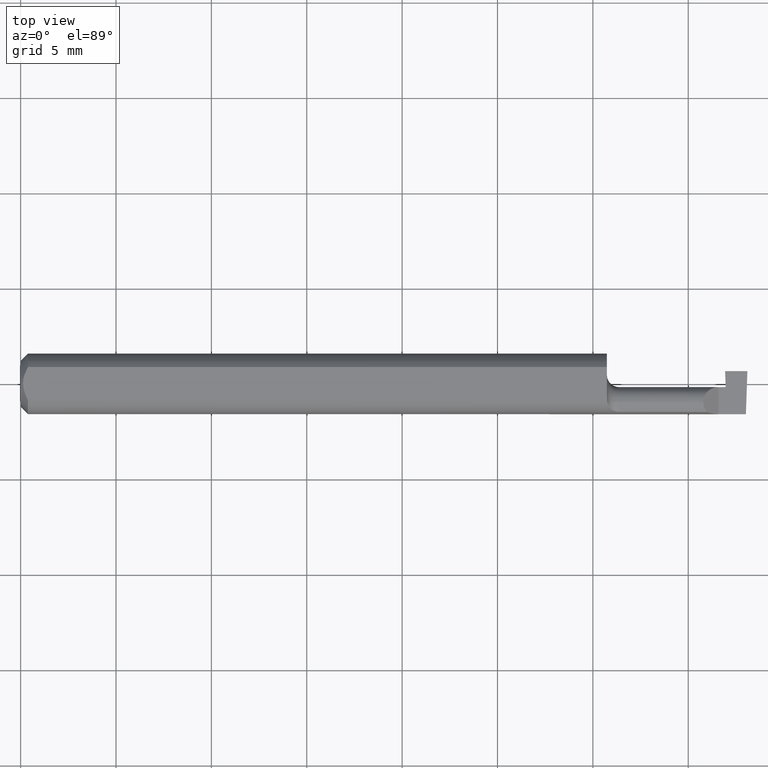
[diagram: clean part render]
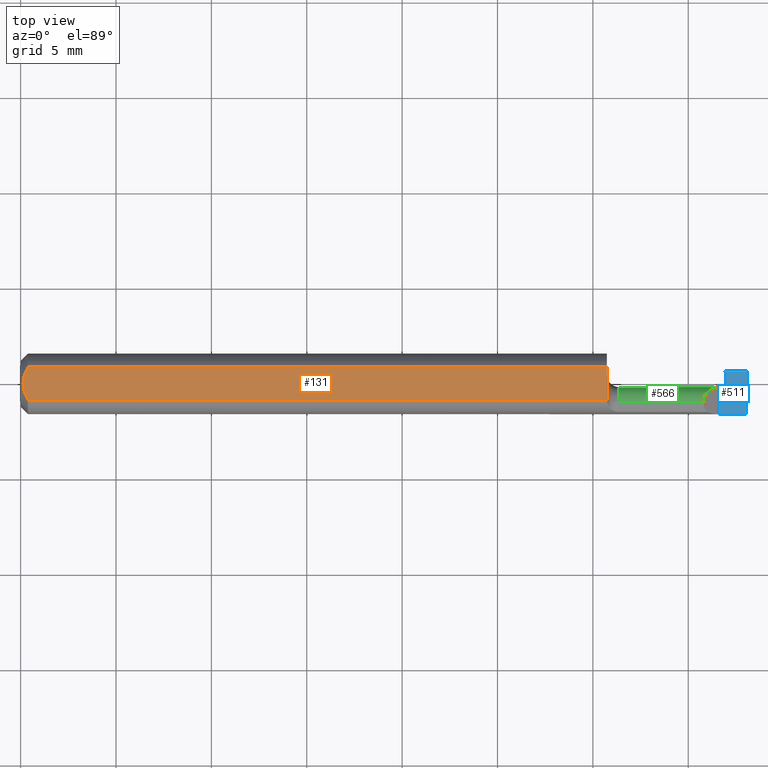
[diagram: same view with three faces highlighted in distinct colors, each labeled with its STEP entity id]
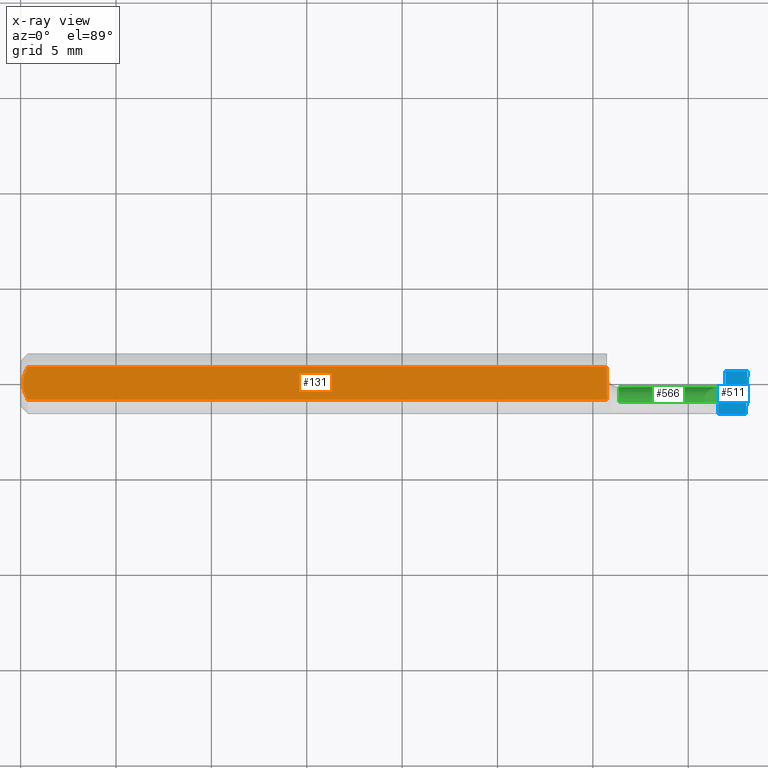
[diagram: x-ray of the same camera — body ghosted, the three highlighted faces saturated]
A machine part, top view with three faces highlighted in distinct colors.
The next image is the same camera in x-ray (body ghosted, the three faces saturated) — at least one of them is partly hidden behind the body in this view.
Their STEP definitions:

[orange] entity #131 — the highlighted planar face has unit normal (0, -0, 1).
#8 = CARTESIAN_POINT ( 'NONE',  ( 0.004999999999998634009, -0.005964525438754507587, 0.05250000000000000500 ) ) ;
#14 = EDGE_LOOP ( 'NONE', ( #438, #233, #417, #288, #121, #435 ) ) ;
#20 = CARTESIAN_POINT ( 'NONE',  ( 0.004999999999989314207, 8.235553591830799656E-16, 0.05250000000000000500 ) ) ;
#23 = CARTESIAN_POINT ( 'NONE',  ( 0.004999999999999040802, 0.005952453510029875015, 0.05249999999999999806 ) ) ;
#36 = EDGE_CURVE ( 'NONE', #390, #470, #84, .T. ) ;
#39 = CARTESIAN_POINT ( 'NONE',  ( 1.500000000000000222, -0.06250000000000001388, 0.05250000000000000500 ) ) ;
#50 = FACE_OUTER_BOUND ( 'NONE', #14, .T. ) ;
#62 = VERTEX_POINT ( 'NONE', #531 ) ;
#63 = CARTESIAN_POINT ( 'NONE',  ( 1.210204566557054884, -0.03126200802673112511, 0.05250000000000000500 ) ) ;
#84 = LINE ( 'NONE', #292, #485 ) ;
#89 = DIRECTION ( 'NONE',  ( -0.000000000000000000, 1.000000000000000000, 0.000000000000000000 ) ) ;
#90 = B_SPLINE_CURVE_WITH_KNOTS ( 'NONE', 3,
 ( #625, #8, #572, #564, #337, #468 ),
 .UNSPECIFIED., .F., .F.,
 ( 4, 2, 4 ),
 ( 0.001877944590463637717, 0.002327931134338583757, 0.002777917678213529581 ),
 .UNSPECIFIED. ) ;
#96 = LINE ( 'NONE', #645, #600 ) ;
#104 = EDGE_CURVE ( 'NONE', #62, #462, #96, .T. ) ;
#121 = ORIENTED_EDGE ( 'NONE', *, *, #407, .T. ) ;
#131 = ADVANCED_FACE ( 'NONE', ( #50 ), #261, .T. ) ;
#139 = CARTESIAN_POINT ( 'NONE',  ( 1.210000000000000187, -0.06250000000000001388, 0.05250000000000000500 ) ) ;
#172 = CARTESIAN_POINT ( 'NONE',  ( 1.209999999999999964, -0.02066217183507433608, 0.05250000000000000500 ) ) ;
#184 = CARTESIAN_POINT ( 'NONE',  ( 1.209999999999999964, -0.01801282473009493609, 0.05250000000000000500 ) ) ;
#222 = VECTOR ( 'NONE', #89, 39.37007874015748143 ) ;
#233 = ORIENTED_EDGE ( 'NONE', *, *, #658, .T. ) ;
#251 = DIRECTION ( 'NONE',  ( 0.000000000000000000, -0.000000000000000000, 1.000000000000000000 ) ) ;
#261 = PLANE ( 'NONE',  #697 ) ;
#283 = CARTESIAN_POINT ( 'NONE',  ( 1.210229202404335291, -0.03391164991562639619, 0.05250000000000000500 ) ) ;
#288 = ORIENTED_EDGE ( 'NONE', *, *, #36, .T. ) ;
#290 = CARTESIAN_POINT ( 'NONE',  ( 0.009668628632509970039, 0.02325858892916567860, 0.05250000000000001193 ) ) ;
#292 = CARTESIAN_POINT ( 'NONE',  ( 0.000000000000000000, 0.03391164991562636150, 0.05249999999999998418 ) ) ;
#301 = CARTESIAN_POINT ( 'NONE',  ( 0.01499999999999999771, 0.03391164991562633374, 0.05250000000000000500 ) ) ;
#316 = CARTESIAN_POINT ( 'NONE',  ( 1.209999999999999964, -0.01801282473009493609, 0.05250000000000000500 ) ) ;
#329 = VERTEX_POINT ( 'NONE', #398 ) ;
#331 = B_SPLINE_CURVE_WITH_KNOTS ( 'NONE', 3,
 ( #283, #63, #559, #348, #172, #184 ),
 .UNSPECIFIED., .F., .F.,
 ( 4, 2, 4 ),
 ( 0.006720649285649993657, 0.006920528095085039244, 0.007120406904520083964 ),
 .UNSPECIFIED. ) ;
#337 = CARTESIAN_POINT ( 'NONE',  ( 0.01216049014016022493, -0.02867836381244416935, 0.05250000000000000500 ) ) ;
#348 = CARTESIAN_POINT ( 'NONE',  ( 1.210049859856603183, -0.02331211554562635097, 0.05250000000000001193 ) ) ;
#349 = CARTESIAN_POINT ( 'NONE',  ( 1.210000000000000187, 0.03391164991562634068, 0.05250000000000000500 ) ) ;
#373 = B_SPLINE_CURVE_WITH_KNOTS ( 'NONE', 3,
 ( #691, #472, #290, #681, #23, #20 ),
 .UNSPECIFIED., .F., .F.,
 ( 4, 2, 4 ),
 ( 0.0009797930073890425730, 0.001428868798926340253, 0.001877944590463637717 ),
 .UNSPECIFIED. ) ;
#374 = DIRECTION ( 'NONE',  ( 1.000000000000000000, 0.000000000000000000, -0.000000000000000000 ) ) ;
#390 = VERTEX_POINT ( 'NONE', #349 ) ;
#398 = CARTESIAN_POINT ( 'NONE',  ( 0.004999999999989314207, 8.235553591830799656E-16, 0.05250000000000000500 ) ) ;
#407 = EDGE_CURVE ( 'NONE', #470, #329, #373, .T. ) ;
#414 = LINE ( 'NONE', #139, #222 ) ;
#417 = ORIENTED_EDGE ( 'NONE', *, *, #464, .T. ) ;
#432 = DIRECTION ( 'NONE',  ( 1.000000000000000000, 0.000000000000000000, 0.000000000000000000 ) ) ;
#435 = ORIENTED_EDGE ( 'NONE', *, *, #648, .T. ) ;
#438 = ORIENTED_EDGE ( 'NONE', *, *, #104, .T. ) ;
#462 = VERTEX_POINT ( 'NONE', #521 ) ;
#464 = EDGE_CURVE ( 'NONE', #543, #390, #414, .T. ) ;
#468 = CARTESIAN_POINT ( 'NONE',  ( 0.01499999999999999944, -0.03391164991562636150, 0.05249999999999998418 ) ) ;
#470 = VERTEX_POINT ( 'NONE', #301 ) ;
#472 = CARTESIAN_POINT ( 'NONE',  ( 0.01218419045468773464, 0.02872204407162096823, 0.05250000000000001193 ) ) ;
#485 = VECTOR ( 'NONE', #641, 39.37007874015748143 ) ;
#521 = CARTESIAN_POINT ( 'NONE',  ( 1.210229202404335291, -0.03391164991562639619, 0.05250000000000000500 ) ) ;
#531 = CARTESIAN_POINT ( 'NONE',  ( 0.01499999999999999944, -0.03391164991562636150, 0.05249999999999998418 ) ) ;
#543 = VERTEX_POINT ( 'NONE', #316 ) ;
#559 = CARTESIAN_POINT ( 'NONE',  ( 1.210152529077525907, -0.02861203825950621102, 0.05250000000000001193 ) ) ;
#564 = CARTESIAN_POINT ( 'NONE',  ( 0.009676924495017957123, -0.02328413057436891712, 0.05250000000000001193 ) ) ;
#572 = CARTESIAN_POINT ( 'NONE',  ( 0.006056885874551373727, -0.01188654981375985957, 0.05250000000000001193 ) ) ;
#600 = VECTOR ( 'NONE', #432, 39.37007874015748143 ) ;
#625 = CARTESIAN_POINT ( 'NONE',  ( 0.004999999999989314207, 8.235553591830799656E-16, 0.05250000000000000500 ) ) ;
#641 = DIRECTION ( 'NONE',  ( -1.000000000000000000, -0.000000000000000000, -0.000000000000000000 ) ) ;
#645 = CARTESIAN_POINT ( 'NONE',  ( 0.000000000000000000, -0.03391164991562636150, 0.05249999999999998418 ) ) ;
#648 = EDGE_CURVE ( 'NONE', #329, #62, #90, .T. ) ;
#658 = EDGE_CURVE ( 'NONE', #462, #543, #331, .T. ) ;
#681 = CARTESIAN_POINT ( 'NONE',  ( 0.006063917085846147297, 0.01190810954070469288, 0.05250000000000001887 ) ) ;
#691 = CARTESIAN_POINT ( 'NONE',  ( 0.01499999999999999771, 0.03391164991562633374, 0.05250000000000000500 ) ) ;
#697 = AXIS2_PLACEMENT_3D ( 'NONE', #39, #251, #374 ) ;

[blue] entity #511 — the highlighted planar face has unit normal (-0, 0, -1).
#3 = VERTEX_POINT ( 'NONE', #244 ) ;
#11 = CARTESIAN_POINT ( 'NONE',  ( 1.454000000000000181, 0.02649999999999999231, -4.390358774943263236E-18 ) ) ;
#19 = VECTOR ( 'NONE', #295, 39.37007874015748143 ) ;
#69 = CARTESIAN_POINT ( 'NONE',  ( 1.440000000000000169, -0.06250000000000000000, 7.469896857675718968E-18 ) ) ;
#87 = VERTEX_POINT ( 'NONE', #484 ) ;
#116 = DIRECTION ( 'NONE',  ( -1.000000000000000000, -0.000000000000000000, -0.000000000000000000 ) ) ;
#118 = CARTESIAN_POINT ( 'NONE',  ( 1.440000000000000169, -0.1000000000000000056, 7.469896857675718968E-18 ) ) ;
#127 = DIRECTION ( 'NONE',  ( -0.000000000000000000, 1.000000000000000000, -0.000000000000000000 ) ) ;
#145 = DIRECTION ( 'NONE',  ( 0.03487823687994284771, -0.9993915692020551855, -4.336991745945064567E-18 ) ) ;
#157 = VECTOR ( 'NONE', #116, 39.37007874015748143 ) ;
#167 = ORIENTED_EDGE ( 'NONE', *, *, #372, .T. ) ;
#169 = LINE ( 'NONE', #655, #391 ) ;
#171 = EDGE_LOOP ( 'NONE', ( #507, #276, #634, #167, #340, #624 ) ) ;
#192 = LINE ( 'NONE', #586, #19 ) ;
#198 = FACE_OUTER_BOUND ( 'NONE', #171, .T. ) ;
#207 = EDGE_CURVE ( 'NONE', #87, #3, #169, .T. ) ;
#224 = DIRECTION ( 'NONE',  ( 1.000000000000000000, -0.000000000000000000, -0.000000000000000000 ) ) ;
#227 = EDGE_CURVE ( 'NONE', #540, #657, #503, .T. ) ;
#244 = CARTESIAN_POINT ( 'NONE',  ( 1.455151682536162783, -0.006500000000000021386, 1.132879419432717802E-17 ) ) ;
#276 = ORIENTED_EDGE ( 'NONE', *, *, #439, .T. ) ;
#295 = DIRECTION ( 'NONE',  ( 0.03489949670249706953, 0.9993908270190959842, -4.341950059913416674E-18 ) ) ;
#311 = DIRECTION ( 'NONE',  ( -1.000000000000000000, 0.000000000000000000, 1.244982809612622067E-16 ) ) ;
#315 = AXIS2_PLACEMENT_3D ( 'NONE', #320, #698, #311 ) ;
#320 = CARTESIAN_POINT ( 'NONE',  ( 1.500000000000000222, -0.1000000000000000056, 0.000000000000000000 ) ) ;
#340 = ORIENTED_EDGE ( 'NONE', *, *, #207, .F. ) ;
#367 = VECTOR ( 'NONE', #224, 39.37007874015748143 ) ;
#372 = EDGE_CURVE ( 'NONE', #668, #3, #626, .T. ) ;
#376 = PLANE ( 'NONE',  #315 ) ;
#380 = VECTOR ( 'NONE', #145, 39.37007874015749564 ) ;
#391 = VECTOR ( 'NONE', #618, 39.37007874015748143 ) ;
#393 = CARTESIAN_POINT ( 'NONE',  ( 2.324973294346407873E-32, -0.06250000000000000000, 1.867474214418933224E-16 ) ) ;
#397 = CARTESIAN_POINT ( 'NONE',  ( 1.400000000000000133, 0.02649999999999999231, -4.390358774943263236E-18 ) ) ;
#439 = EDGE_CURVE ( 'NONE', #540, #652, #192, .T. ) ;
#484 = CARTESIAN_POINT ( 'NONE',  ( 1.440000000000000169, -0.006500000000000019651, 7.469896857675718968E-18 ) ) ;
#503 = LINE ( 'NONE', #393, #157 ) ;
#507 = ORIENTED_EDGE ( 'NONE', *, *, #227, .F. ) ;
#511 = ADVANCED_FACE ( 'NONE', ( #198 ), #376, .F. ) ;
#528 = CARTESIAN_POINT ( 'NONE',  ( 1.458465371114397113, -0.1014495365676831157, 5.170989896621579439E-18 ) ) ;
#540 = VERTEX_POINT ( 'NONE', #553 ) ;
#553 = CARTESIAN_POINT ( 'NONE',  ( 1.496892051515234412, -0.06249999999999996531, -4.074989739627355278E-18 ) ) ;
#586 = CARTESIAN_POINT ( 'NONE',  ( 1.495587903035684230, -0.09984592617893391087, 5.492984874917308691E-19 ) ) ;
#617 = LINE ( 'NONE', #397, #367 ) ;
#618 = DIRECTION ( 'NONE',  ( 1.000000000000000000, 0.000000000000000000, 0.000000000000000000 ) ) ;
#620 = EDGE_CURVE ( 'NONE', #657, #87, #622, .T. ) ;
#622 = LINE ( 'NONE', #118, #711 ) ;
#624 = ORIENTED_EDGE ( 'NONE', *, *, #620, .F. ) ;
#626 = LINE ( 'NONE', #528, #380 ) ;
#634 = ORIENTED_EDGE ( 'NONE', *, *, #640, .F. ) ;
#640 = EDGE_CURVE ( 'NONE', #668, #652, #617, .T. ) ;
#652 = VERTEX_POINT ( 'NONE', #680 ) ;
#655 = CARTESIAN_POINT ( 'NONE',  ( 1.210000000000000187, -0.006499999999999993630, 3.610450147876602688E-17 ) ) ;
#657 = VERTEX_POINT ( 'NONE', #69 ) ;
#668 = VERTEX_POINT ( 'NONE', #11 ) ;
#680 = CARTESIAN_POINT ( 'NONE',  ( 1.499999999999999556, 0.02649999999999997843, -1.043117739768287950E-16 ) ) ;
#698 = DIRECTION ( 'NONE',  ( -1.244982809612622067E-16, 0.000000000000000000, -1.000000000000000000 ) ) ;
#711 = VECTOR ( 'NONE', #127, 39.37007874015748143 ) ;

[green] entity #566 — the highlighted cylindrical surface (edge-blend (fillet) strip) has radius 0.7874 mm, axis along (-1, -0, -0).
#3 = VERTEX_POINT ( 'NONE', #244 ) ;
#5 = LINE ( 'NONE', #165, #80 ) ;
#44 = ORIENTED_EDGE ( 'NONE', *, *, #419, .F. ) ;
#46 = CARTESIAN_POINT ( 'NONE',  ( 1.210000000000000187, -0.03749999999999999167, 0.000000000000000000 ) ) ;
#47 = CARTESIAN_POINT ( 'NONE',  ( 1.455785434802166822, -0.006499999999999978885, -0.01815937956643404530 ) ) ;
#49 = FACE_OUTER_BOUND ( 'NONE', #56, .T. ) ;
#56 = EDGE_LOOP ( 'NONE', ( #501, #536, #44, #619, #273, #113 ) ) ;
#74 = VERTEX_POINT ( 'NONE', #249 ) ;
#80 = VECTOR ( 'NONE', #612, 39.37007874015748143 ) ;
#87 = VERTEX_POINT ( 'NONE', #484 ) ;
#94 = EDGE_CURVE ( 'NONE', #702, #3, #370, .T. ) ;
#101 = CARTESIAN_POINT ( 'NONE',  ( 1.409000000000000252, -0.03749999999999999167, 0.03099999999999999978 ) ) ;
#102 = VERTEX_POINT ( 'NONE', #599 ) ;
#103 = CARTESIAN_POINT ( 'NONE',  ( 1.455151682536162783, -0.006500000000000021386, 1.132879419432717802E-17 ) ) ;
#113 = ORIENTED_EDGE ( 'NONE', *, *, #207, .T. ) ;
#114 = EDGE_CURVE ( 'NONE', #173, #87, #449, .T. ) ;
#165 = CARTESIAN_POINT ( 'NONE',  ( 1.210000000000000187, -0.03749999999999999167, 0.03099999999999999978 ) ) ;
#169 = LINE ( 'NONE', #655, #391 ) ;
#173 = VERTEX_POINT ( 'NONE', #101 ) ;
#207 = EDGE_CURVE ( 'NONE', #87, #3, #169, .T. ) ;
#239 = EDGE_CURVE ( 'NONE', #173, #102, #5, .T. ) ;
#244 = CARTESIAN_POINT ( 'NONE',  ( 1.455151682536162783, -0.006500000000000021386, 1.132879419432717802E-17 ) ) ;
#249 = CARTESIAN_POINT ( 'NONE',  ( 1.235000000000000098, -0.03749999999999998473, -0.03099999999999999978 ) ) ;
#262 = DIRECTION ( 'NONE',  ( 0.000000000000000000, 0.000000000000000000, 1.000000000000000000 ) ) ;
#273 = ORIENTED_EDGE ( 'NONE', *, *, #114, .T. ) ;
#282 = EDGE_CURVE ( 'NONE', #702, #74, #560, .T. ) ;
#309 = CARTESIAN_POINT ( 'NONE',  ( 1.421840620433566293, -0.006499999999999986691, 0.01815937956643405224 ) ) ;
#365 = DIRECTION ( 'NONE',  ( -1.000000000000000000, -0.000000000000000000, -0.000000000000000000 ) ) ;
#370 =( BOUNDED_CURVE ( )  B_SPLINE_CURVE ( 3, ( #491, #549, #47, #103 ),
 .UNSPECIFIED., .F., .T. ) 
 B_SPLINE_CURVE_WITH_KNOTS ( ( 4, 4 ),
 ( 3.140373936913447572, 4.711170263708345018 ),
 .UNSPECIFIED. ) 
 CURVE ( )  GEOMETRIC_REPRESENTATION_ITEM ( )  RATIONAL_B_SPLINE_CURVE ( ( 1.000000000000000000, 0.8047378541243648264, 0.8047378541243648264, 1.000000000000000000 ) ) 
 REPRESENTATION_ITEM ( '' )  );
#381 = DIRECTION ( 'NONE',  ( -1.000000000000000000, -0.000000000000000000, -0.000000000000000000 ) ) ;
#391 = VECTOR ( 'NONE', #618, 39.37007874015748143 ) ;
#411 = DIRECTION ( 'NONE',  ( 0.000000000000000000, 0.000000000000000000, 1.000000000000000000 ) ) ;
#419 = EDGE_CURVE ( 'NONE', #102, #74, #539, .T. ) ;
#428 = CARTESIAN_POINT ( 'NONE',  ( 1.440000000000000169, -0.006500000000000019651, 7.469896857675718968E-18 ) ) ;
#449 =( BOUNDED_CURVE ( )  B_SPLINE_CURVE ( 3, ( #709, #602, #309, #428 ),
 .UNSPECIFIED., .F., .F. ) 
 B_SPLINE_CURVE_WITH_KNOTS ( ( 4, 4 ),
 ( 0.000000000000000000, 1.570796326794896558 ),
 .UNSPECIFIED. ) 
 CURVE ( )  GEOMETRIC_REPRESENTATION_ITEM ( )  RATIONAL_B_SPLINE_CURVE ( ( 1.000000000000000000, 0.8047378541243649375, 0.8047378541243649375, 1.000000000000000000 ) ) 
 REPRESENTATION_ITEM ( '' )  );
#461 = DIRECTION ( 'NONE',  ( -1.000000000000000000, -0.000000000000000000, -0.000000000000000000 ) ) ;
#474 = CARTESIAN_POINT ( 'NONE',  ( 1.235000000000000098, -0.03749999999999999167, 0.000000000000000000 ) ) ;
#484 = CARTESIAN_POINT ( 'NONE',  ( 1.440000000000000169, -0.006500000000000019651, 7.469896857675718968E-18 ) ) ;
#491 = CARTESIAN_POINT ( 'NONE',  ( 1.456232246817798393, -0.03749999999999999861, -0.03099999999999999978 ) ) ;
#501 = ORIENTED_EDGE ( 'NONE', *, *, #94, .F. ) ;
#536 = ORIENTED_EDGE ( 'NONE', *, *, #282, .T. ) ;
#538 = VECTOR ( 'NONE', #461, 39.37007874015748143 ) ;
#539 = CIRCLE ( 'NONE', #578, 0.03099999999999999978 ) ;
#548 = CYLINDRICAL_SURFACE ( 'NONE', #651, 0.03099999999999999978 ) ;
#549 = CARTESIAN_POINT ( 'NONE',  ( 1.456233019182636257, -0.01934062043356593596, -0.03100000000000000325 ) ) ;
#557 = CARTESIAN_POINT ( 'NONE',  ( 1.210000000000000187, -0.03749999999999999167, -0.03099999999999999978 ) ) ;
#560 = LINE ( 'NONE', #557, #538 ) ;
#566 = ADVANCED_FACE ( 'NONE', ( #49 ), #548, .T. ) ;
#578 = AXIS2_PLACEMENT_3D ( 'NONE', #474, #365, #411 ) ;
#599 = CARTESIAN_POINT ( 'NONE',  ( 1.235000000000000098, -0.03749999999999999167, 0.03099999999999999978 ) ) ;
#602 = CARTESIAN_POINT ( 'NONE',  ( 1.409000000000000474, -0.01934062043356593596, 0.03099999999999999978 ) ) ;
#612 = DIRECTION ( 'NONE',  ( -1.000000000000000000, -0.000000000000000000, -0.000000000000000000 ) ) ;
#618 = DIRECTION ( 'NONE',  ( 1.000000000000000000, 0.000000000000000000, 0.000000000000000000 ) ) ;
#619 = ORIENTED_EDGE ( 'NONE', *, *, #239, .F. ) ;
#629 = CARTESIAN_POINT ( 'NONE',  ( 1.456232246817798393, -0.03749999999999999861, -0.03099999999999999978 ) ) ;
#651 = AXIS2_PLACEMENT_3D ( 'NONE', #46, #381, #262 ) ;
#655 = CARTESIAN_POINT ( 'NONE',  ( 1.210000000000000187, -0.006499999999999993630, 3.610450147876602688E-17 ) ) ;
#702 = VERTEX_POINT ( 'NONE', #629 ) ;
#709 = CARTESIAN_POINT ( 'NONE',  ( 1.409000000000000252, -0.03749999999999999167, 0.03099999999999999978 ) ) ;